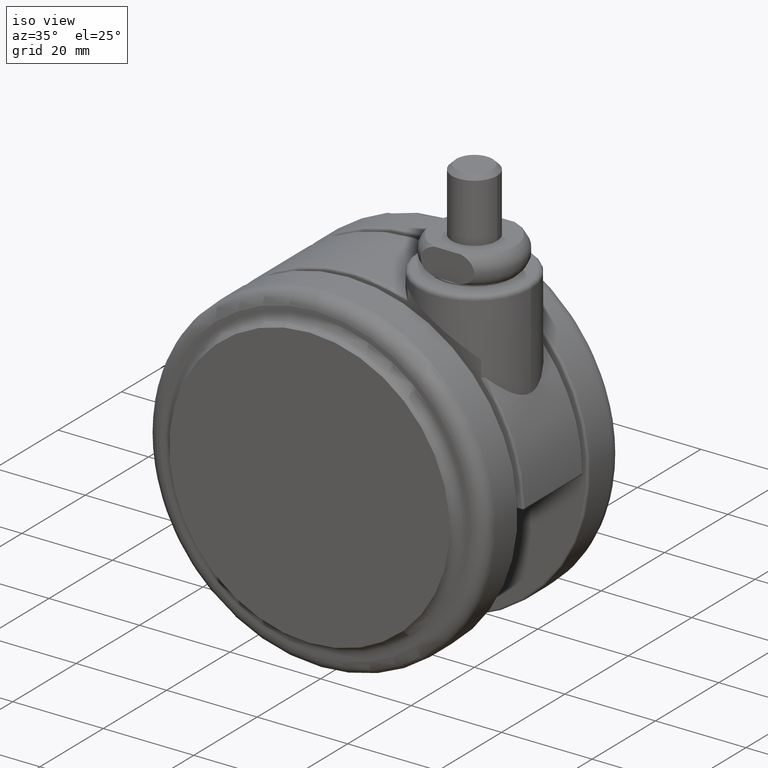
[diagram: clean part render]
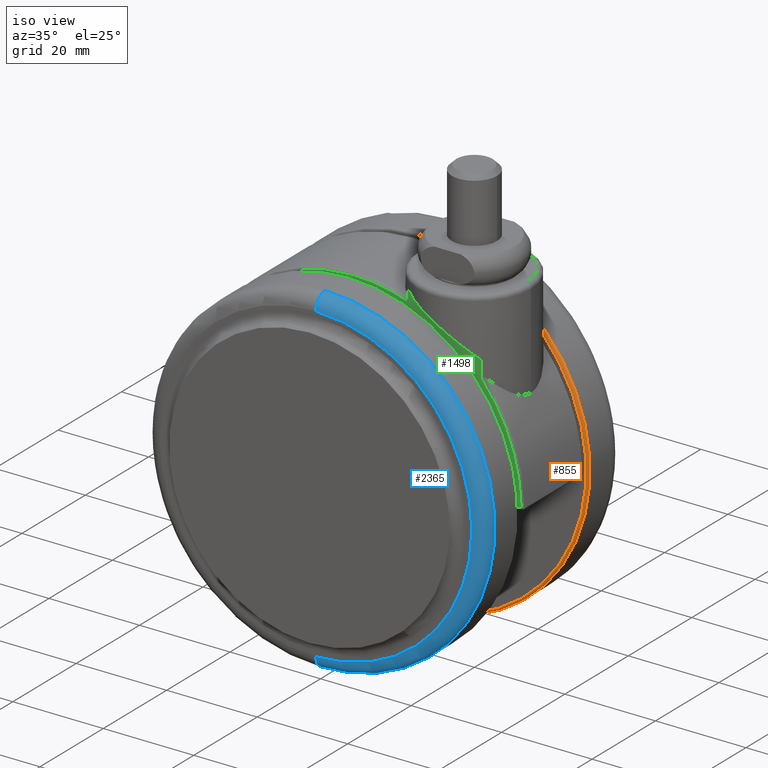
[diagram: same view with three faces highlighted in distinct colors, each labeled with its STEP entity id]
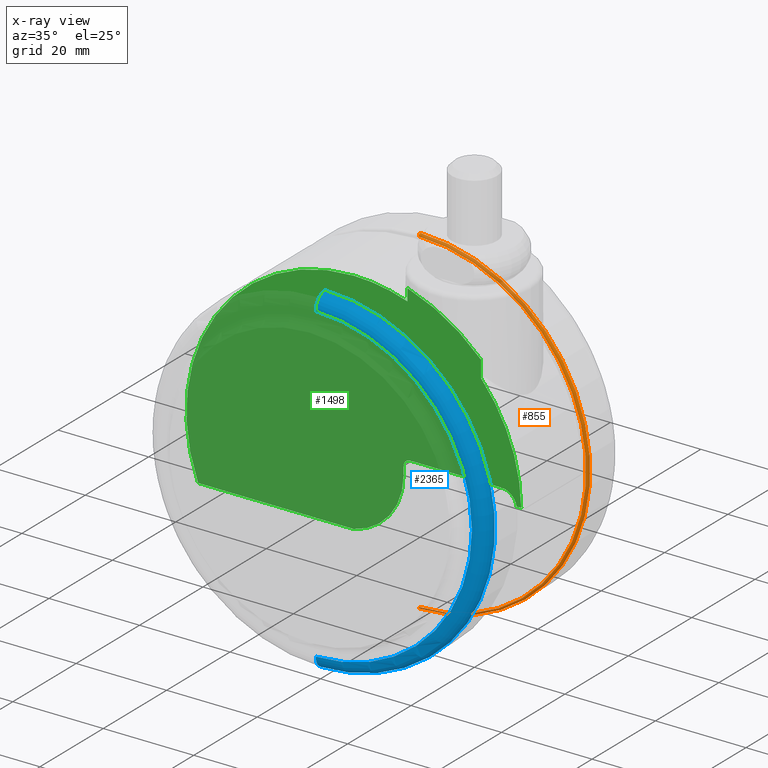
[diagram: x-ray of the same camera — body ghosted, the three highlighted faces saturated]
A machine part, iso view with three faces highlighted in distinct colors.
The next image is the same camera in x-ray (body ghosted, the three faces saturated) — at least one of them is partly hidden behind the body in this view.
Their STEP definitions:

[orange] entity #855 — the highlighted toroidal blend (fillet) surface has major radius 37 mm and minor (blend) radius 0.5 mm.
#72 = DIRECTION ( 'NONE',  ( -1.582413479254075000E-015, -1.000000000000000000, 0.0000000000000000000 ) ) ;
#117 = DIRECTION ( 'NONE',  ( -1.000000000000000000, 1.582413479254075000E-015, -1.224646799147353200E-016 ) ) ;
#199 = CARTESIAN_POINT ( 'NONE',  ( -20.00000000000000000, 11.50000000000000000, -77.50000000000000000 ) ) ;
#315 = EDGE_CURVE ( 'NONE', #3753, #3182, #1836, .T. ) ;
#432 = DIRECTION ( 'NONE',  ( 0.0000000000000000000, 0.0000000000000000000, -1.000000000000000000 ) ) ;
#477 = AXIS2_PLACEMENT_3D ( 'NONE', #2027, #1318, #3547 ) ;
#722 = DIRECTION ( 'NONE',  ( 1.000000000000000000, -1.582413479254075000E-015, 0.0000000000000000000 ) ) ;
#855 = ADVANCED_FACE ( 'NONE', ( #3530 ), #1922, .T. ) ;
#1009 = CARTESIAN_POINT ( 'NONE',  ( -20.00000000000000000, 11.50000000000000000, -40.50000000000000000 ) ) ;
#1289 = EDGE_LOOP ( 'NONE', ( #2469, #3637, #2833, #2029 ) ) ;
#1318 = DIRECTION ( 'NONE',  ( -1.582413479254075000E-015, -1.000000000000000000, 0.0000000000000000000 ) ) ;
#1472 = EDGE_CURVE ( 'NONE', #3182, #2870, #1664, .T. ) ;
#1651 = CARTESIAN_POINT ( 'NONE',  ( -20.00000000000000000, 11.50000000000000000, -78.00000000000000000 ) ) ;
#1664 = CIRCLE ( 'NONE', #477, 37.50000000000000000 ) ;
#1836 = CIRCLE ( 'NONE', #3588, 0.5000000000000004400 ) ;
#1905 = DIRECTION ( 'NONE',  ( 1.582413479254075000E-015, 1.000000000000000000, 0.0000000000000000000 ) ) ;
#1907 = CARTESIAN_POINT ( 'NONE',  ( -20.00000000000000000, 11.00000000000000000, -40.50000000000000000 ) ) ;
#1922 = TOROIDAL_SURFACE ( 'NONE', #3833, 37.00000000000000000, 0.5000000000000000000 ) ;
#1954 = CARTESIAN_POINT ( 'NONE',  ( -20.00000000000000400, 11.50000000000000000, -3.500000000000003100 ) ) ;
#1969 = AXIS2_PLACEMENT_3D ( 'NONE', #1907, #72, #2222 ) ;
#2027 = CARTESIAN_POINT ( 'NONE',  ( -20.00000000000000000, 11.50000000000000000, -40.50000000000000000 ) ) ;
#2029 = ORIENTED_EDGE ( 'NONE', *, *, #1472, .T. ) ;
#2071 = CARTESIAN_POINT ( 'NONE',  ( -19.99999999999998200, 11.50000000000000000, -3.000000000000002700 ) ) ;
#2076 = DIRECTION ( 'NONE',  ( 0.0000000000000000000, 1.000000000000000000, 0.0000000000000000000 ) ) ;
#2222 = DIRECTION ( 'NONE',  ( 0.0000000000000000000, 0.0000000000000000000, -1.000000000000000000 ) ) ;
#2259 = EDGE_CURVE ( 'NONE', #3292, #2870, #3507, .T. ) ;
#2262 = DIRECTION ( 'NONE',  ( 0.0000000000000000000, -1.000000000000000000, 0.0000000000000000000 ) ) ;
#2469 = ORIENTED_EDGE ( 'NONE', *, *, #2259, .F. ) ;
#2563 = CIRCLE ( 'NONE', #1969, 37.00000000000000000 ) ;
#2833 = ORIENTED_EDGE ( 'NONE', *, *, #315, .T. ) ;
#2870 = VERTEX_POINT ( 'NONE', #2071 ) ;
#3182 = VERTEX_POINT ( 'NONE', #1651 ) ;
#3250 = CARTESIAN_POINT ( 'NONE',  ( -20.00000000000000400, 11.00000000000000000, -3.500000000000003100 ) ) ;
#3292 = VERTEX_POINT ( 'NONE', #3250 ) ;
#3301 = CARTESIAN_POINT ( 'NONE',  ( -20.00000000000000000, 11.00000000000000000, -77.50000000000000000 ) ) ;
#3507 = CIRCLE ( 'NONE', #3718, 0.5000000000000004400 ) ;
#3530 = FACE_OUTER_BOUND ( 'NONE', #1289, .T. ) ;
#3547 = DIRECTION ( 'NONE',  ( 0.0000000000000000000, 0.0000000000000000000, -1.000000000000000000 ) ) ;
#3588 = AXIS2_PLACEMENT_3D ( 'NONE', #199, #722, #2076 ) ;
#3637 = ORIENTED_EDGE ( 'NONE', *, *, #3920, .F. ) ;
#3718 = AXIS2_PLACEMENT_3D ( 'NONE', #1954, #117, #2262 ) ;
#3753 = VERTEX_POINT ( 'NONE', #3301 ) ;
#3833 = AXIS2_PLACEMENT_3D ( 'NONE', #1009, #1905, #432 ) ;
#3920 = EDGE_CURVE ( 'NONE', #3753, #3292, #2563, .T. ) ;

[blue] entity #2365 — the highlighted toroidal blend (fillet) surface has major radius 34.5 mm and minor (blend) radius 3 mm.
#82 = TOROIDAL_SURFACE ( 'NONE', #1001, 34.50000000000000000, 3.000000000000000000 ) ;
#168 = CARTESIAN_POINT ( 'NONE',  ( -20.00000000000000000, -18.50000000000000000, -40.50000000000000000 ) ) ;
#196 = AXIS2_PLACEMENT_3D ( 'NONE', #168, #3531, #3280 ) ;
#216 = VERTEX_POINT ( 'NONE', #2328 ) ;
#254 = EDGE_LOOP ( 'NONE', ( #2728, #3252, #1049, #335 ) ) ;
#335 = ORIENTED_EDGE ( 'NONE', *, *, #3648, .F. ) ;
#452 = DIRECTION ( 'NONE',  ( 0.0000000000000000000, -1.000000000000000000, 0.0000000000000000000 ) ) ;
#489 = EDGE_CURVE ( 'NONE', #1870, #216, #3057, .T. ) ;
#1001 = AXIS2_PLACEMENT_3D ( 'NONE', #1683, #452, #1989 ) ;
#1049 = ORIENTED_EDGE ( 'NONE', *, *, #489, .F. ) ;
#1115 = DIRECTION ( 'NONE',  ( -1.000000000000000000, -0.0000000000000000000, -0.0000000000000000000 ) ) ;
#1482 = AXIS2_PLACEMENT_3D ( 'NONE', #2854, #3921, #3812 ) ;
#1636 = EDGE_CURVE ( 'NONE', #2355, #3041, #3616, .T. ) ;
#1683 = CARTESIAN_POINT ( 'NONE',  ( -20.00000000000000000, -18.50000000000000000, -40.50000000000000000 ) ) ;
#1706 = CIRCLE ( 'NONE', #2470, 3.000000000000002700 ) ;
#1870 = VERTEX_POINT ( 'NONE', #3676 ) ;
#1989 = DIRECTION ( 'NONE',  ( 0.0000000000000000000, 0.0000000000000000000, -1.000000000000000000 ) ) ;
#2165 = EDGE_CURVE ( 'NONE', #3041, #216, #2997, .T. ) ;
#2328 = CARTESIAN_POINT ( 'NONE',  ( -19.99999999999999600, -21.50000000000000000, -5.999999999999998200 ) ) ;
#2355 = VERTEX_POINT ( 'NONE', #2890 ) ;
#2365 = ADVANCED_FACE ( 'NONE', ( #3227 ), #82, .T. ) ;
#2393 = DIRECTION ( 'NONE',  ( 0.0000000000000000000, 0.0000000000000000000, -1.000000000000000000 ) ) ;
#2470 = AXIS2_PLACEMENT_3D ( 'NONE', #2936, #1115, #3245 ) ;
#2517 = AXIS2_PLACEMENT_3D ( 'NONE', #3923, #3942, #2393 ) ;
#2728 = ORIENTED_EDGE ( 'NONE', *, *, #1636, .T. ) ;
#2854 = CARTESIAN_POINT ( 'NONE',  ( -20.00000000000000000, -21.50000000000000000, -40.50000000000000000 ) ) ;
#2890 = CARTESIAN_POINT ( 'NONE',  ( -20.00000000000000000, -18.50000000000000000, -78.00000000000001400 ) ) ;
#2936 = CARTESIAN_POINT ( 'NONE',  ( -20.00000000000000000, -18.50000000000000000, -75.00000000000001400 ) ) ;
#2997 = CIRCLE ( 'NONE', #2517, 2.999999999999999100 ) ;
#3041 = VERTEX_POINT ( 'NONE', #3734 ) ;
#3057 = CIRCLE ( 'NONE', #1482, 34.50000000000000700 ) ;
#3227 = FACE_OUTER_BOUND ( 'NONE', #254, .T. ) ;
#3245 = DIRECTION ( 'NONE',  ( 0.0000000000000000000, 0.0000000000000000000, 1.000000000000000000 ) ) ;
#3252 = ORIENTED_EDGE ( 'NONE', *, *, #2165, .T. ) ;
#3280 = DIRECTION ( 'NONE',  ( 0.0000000000000000000, 0.0000000000000000000, -1.000000000000000000 ) ) ;
#3531 = DIRECTION ( 'NONE',  ( 0.0000000000000000000, -1.000000000000000000, 0.0000000000000000000 ) ) ;
#3616 = CIRCLE ( 'NONE', #196, 37.50000000000000000 ) ;
#3648 = EDGE_CURVE ( 'NONE', #2355, #1870, #1706, .T. ) ;
#3676 = CARTESIAN_POINT ( 'NONE',  ( -20.00000000000000000, -21.50000000000000000, -75.00000000000001400 ) ) ;
#3734 = CARTESIAN_POINT ( 'NONE',  ( -19.99999999999999600, -18.50000000000000000, -3.000000000000000400 ) ) ;
#3812 = DIRECTION ( 'NONE',  ( 0.0000000000000000000, 0.0000000000000000000, -1.000000000000000000 ) ) ;
#3921 = DIRECTION ( 'NONE',  ( 0.0000000000000000000, -1.000000000000000000, 0.0000000000000000000 ) ) ;
#3923 = CARTESIAN_POINT ( 'NONE',  ( -19.99999999999999600, -18.50000000000000000, -5.999999999999998200 ) ) ;
#3942 = DIRECTION ( 'NONE',  ( 1.000000000000000000, 0.0000000000000000000, -1.224646799147353200E-016 ) ) ;

[green] entity #1498 — the highlighted planar face has unit normal (0, 1, 0).
#1 = VERTEX_POINT ( 'NONE', #589 ) ;
#49 = LINE ( 'NONE', #2610, #2411 ) ;
#51 = CARTESIAN_POINT ( 'NONE',  ( -20.05147125534830400, -9.499999999999801000, -54.11339081420359800 ) ) ;
#96 = PLANE ( 'NONE',  #1916 ) ;
#136 = DIRECTION ( 'NONE',  ( 0.0000000000000000000, 0.0000000000000000000, 1.000000000000000000 ) ) ;
#143 = DIRECTION ( 'NONE',  ( 1.000000000000000000, 0.0000000000000000000, 0.0000000000000000000 ) ) ;
#349 = CARTESIAN_POINT ( 'NONE',  ( 16.99662146737135200, -9.499999999999801000, -40.00000000000000000 ) ) ;
#404 = AXIS2_PLACEMENT_3D ( 'NONE', #3494, #1679, #3796 ) ;
#456 = CARTESIAN_POINT ( 'NONE',  ( 8.124038404636159800, -9.499999999999801000, -1000.000000000000000 ) ) ;
#464 = EDGE_CURVE ( 'NONE', #1197, #969, #3152, .T. ) ;
#479 = CARTESIAN_POINT ( 'NONE',  ( 15.96278654843155000, -9.499999999999801000, -40.00000000000000000 ) ) ;
#498 = CARTESIAN_POINT ( 'NONE',  ( -7.500000000000450300, -9.499999999999801000, -38.61339081420354800 ) ) ;
#565 = VECTOR ( 'NONE', #143, 1000.000000000000000 ) ;
#589 = CARTESIAN_POINT ( 'NONE',  ( -8.124038404636159800, -9.499999999999801000, -5.457717879889360200 ) ) ;
#617 = CARTESIAN_POINT ( 'NONE',  ( 17.49999999999950300, -9.499999999999801000, -40.00000000000000000 ) ) ;
#625 = ORIENTED_EDGE ( 'NONE', *, *, #1796, .T. ) ;
#662 = CARTESIAN_POINT ( 'NONE',  ( -9.000000000000449400, -9.499999999999801000, -38.61339081420354800 ) ) ;
#698 = EDGE_CURVE ( 'NONE', #1, #1780, #773, .T. ) ;
#699 = DIRECTION ( 'NONE',  ( 0.0000000000000000000, 0.0000000000000000000, 1.000000000000000000 ) ) ;
#709 = ORIENTED_EDGE ( 'NONE', *, *, #464, .T. ) ;
#738 = CARTESIAN_POINT ( 'NONE',  ( -20.00000000000045100, -9.499999999999801000, -3.500000000000003100 ) ) ;
#753 = CARTESIAN_POINT ( 'NONE',  ( -8.124038404636159800, -9.499999999999801000, -1000.000000000000000 ) ) ;
#769 = VERTEX_POINT ( 'NONE', #738 ) ;
#773 = LINE ( 'NONE', #753, #1497 ) ;
#896 = VECTOR ( 'NONE', #3893, 1000.000000000000000 ) ;
#929 = AXIS2_PLACEMENT_3D ( 'NONE', #1643, #3762, #1962 ) ;
#969 = VERTEX_POINT ( 'NONE', #3427 ) ;
#1045 = CARTESIAN_POINT ( 'NONE',  ( -20.00000000000045100, -9.499999999999801000, -54.11339081420359800 ) ) ;
#1079 = EDGE_CURVE ( 'NONE', #2811, #1197, #49, .T. ) ;
#1157 = AXIS2_PLACEMENT_3D ( 'NONE', #2193, #2156, #2409 ) ;
#1197 = VERTEX_POINT ( 'NONE', #662 ) ;
#1242 = VERTEX_POINT ( 'NONE', #2474 ) ;
#1270 = AXIS2_PLACEMENT_3D ( 'NONE', #498, #2390, #2974 ) ;
#1278 = LINE ( 'NONE', #456, #2804 ) ;
#1285 = ORIENTED_EDGE ( 'NONE', *, *, #3577, .T. ) ;
#1306 = DIRECTION ( 'NONE',  ( 1.000000000000000000, 0.0000000000000000000, 0.0000000000000000000 ) ) ;
#1339 = ORIENTED_EDGE ( 'NONE', *, *, #2674, .T. ) ;
#1370 = CARTESIAN_POINT ( 'NONE',  ( -20.00000000000045100, -9.499999999999801000, -40.50000000000000000 ) ) ;
#1467 = CIRCLE ( 'NONE', #2216, 37.00000000000000000 ) ;
#1469 = CARTESIAN_POINT ( 'NONE',  ( -8.124038404636159800, -9.499999999999840100, -2.827575918379870300 ) ) ;
#1497 = VECTOR ( 'NONE', #699, 1000.000000000000000 ) ;
#1498 = ADVANCED_FACE ( 'NONE', ( #3183 ), #96, .F. ) ;
#1545 = EDGE_CURVE ( 'NONE', #2173, #2578, #2290, .T. ) ;
#1554 = CARTESIAN_POINT ( 'NONE',  ( 8.124038404636170400, -9.499999999999840100, -12.76395010434029900 ) ) ;
#1555 = DIRECTION ( 'NONE',  ( 0.0000000000000000000, 1.000000000000000000, 0.0000000000000000000 ) ) ;
#1596 = EDGE_CURVE ( 'NONE', #2572, #1780, #2205, .T. ) ;
#1643 = CARTESIAN_POINT ( 'NONE',  ( 12.61329079872222200, -9.499999999999801000, -40.50000000000000000 ) ) ;
#1663 = DIRECTION ( 'NONE',  ( 4.407135317346482700E-015, 0.0000000000000000000, 1.000000000000000000 ) ) ;
#1679 = DIRECTION ( 'NONE',  ( -0.0000000000000000000, -1.000000000000000000, -0.0000000000000000000 ) ) ;
#1701 = LINE ( 'NONE', #1778, #896 ) ;
#1703 = VERTEX_POINT ( 'NONE', #51 ) ;
#1719 = CIRCLE ( 'NONE', #1157, 13.91033914236718200 ) ;
#1778 = CARTESIAN_POINT ( 'NONE',  ( 12.61329079872220000, -9.499999999999801000, -37.11339081420354800 ) ) ;
#1780 = VERTEX_POINT ( 'NONE', #1469 ) ;
#1796 = EDGE_CURVE ( 'NONE', #1703, #2811, #1719, .T. ) ;
#1866 = ORIENTED_EDGE ( 'NONE', *, *, #698, .F. ) ;
#1916 = AXIS2_PLACEMENT_3D ( 'NONE', #2332, #1555, #3740 ) ;
#1962 = DIRECTION ( 'NONE',  ( 0.0000000000000000000, 0.0000000000000000000, 1.000000000000000000 ) ) ;
#1966 = DIRECTION ( 'NONE',  ( -0.0000000000000000000, -1.000000000000000000, -0.0000000000000000000 ) ) ;
#2012 = DIRECTION ( 'NONE',  ( 0.0000000000000000000, 0.0000000000000000000, 1.000000000000000000 ) ) ;
#2062 = ORIENTED_EDGE ( 'NONE', *, *, #1545, .T. ) ;
#2066 = DIRECTION ( 'NONE',  ( -6.236221103511559900E-015, 0.0000000000000000000, 1.000000000000000000 ) ) ;
#2156 = DIRECTION ( 'NONE',  ( -0.0000000000000000000, -1.000000000000000000, -0.0000000000000000000 ) ) ;
#2173 = VERTEX_POINT ( 'NONE', #479 ) ;
#2193 = CARTESIAN_POINT ( 'NONE',  ( -22.91033914236765100, -9.499999999999801000, -40.50000000000000000 ) ) ;
#2205 = CIRCLE ( 'NONE', #3732, 39.50000000000000000 ) ;
#2216 = AXIS2_PLACEMENT_3D ( 'NONE', #3773, #1966, #136 ) ;
#2245 = ORIENTED_EDGE ( 'NONE', *, *, #1079, .T. ) ;
#2290 = LINE ( 'NONE', #617, #3003 ) ;
#2321 = CARTESIAN_POINT ( 'NONE',  ( -20.00000000000045100, -9.499999999999840100, -40.50000000000000000 ) ) ;
#2332 = CARTESIAN_POINT ( 'NONE',  ( -57.50000000000000000, -9.499999999999801000, -40.50000000000000000 ) ) ;
#2340 = ORIENTED_EDGE ( 'NONE', *, *, #3323, .T. ) ;
#2374 = DIRECTION ( 'NONE',  ( -0.0000000000000000000, -1.000000000000000000, -0.0000000000000000000 ) ) ;
#2390 = DIRECTION ( 'NONE',  ( 0.0000000000000000000, 1.000000000000000000, 0.0000000000000000000 ) ) ;
#2392 = CARTESIAN_POINT ( 'NONE',  ( 8.124038404636159800, -9.499999999999801000, -16.45756951108054600 ) ) ;
#2409 = DIRECTION ( 'NONE',  ( 0.0000000000000000000, 0.0000000000000000000, 1.000000000000000000 ) ) ;
#2411 = VECTOR ( 'NONE', #2012, 1000.000000000000000 ) ;
#2474 = CARTESIAN_POINT ( 'NONE',  ( 12.61329079872222200, -9.499999999999801000, -37.11339081420354800 ) ) ;
#2485 = CIRCLE ( 'NONE', #929, 3.386609185796432400 ) ;
#2537 = VERTEX_POINT ( 'NONE', #2392 ) ;
#2572 = VERTEX_POINT ( 'NONE', #1554 ) ;
#2578 = VERTEX_POINT ( 'NONE', #349 ) ;
#2601 = DIRECTION ( 'NONE',  ( -0.0000000000000000000, -0.0000000000000000000, -1.000000000000000000 ) ) ;
#2610 = CARTESIAN_POINT ( 'NONE',  ( -9.000000000000449400, -9.499999999999801000, -38.61339081420354800 ) ) ;
#2645 = EDGE_CURVE ( 'NONE', #1242, #2173, #2485, .T. ) ;
#2674 = EDGE_CURVE ( 'NONE', #3326, #1703, #3175, .T. ) ;
#2698 = EDGE_CURVE ( 'NONE', #2572, #2537, #1278, .T. ) ;
#2765 = ORIENTED_EDGE ( 'NONE', *, *, #3552, .T. ) ;
#2804 = VECTOR ( 'NONE', #2601, 1000.000000000000000 ) ;
#2811 = VERTEX_POINT ( 'NONE', #3209 ) ;
#2856 = ORIENTED_EDGE ( 'NONE', *, *, #3165, .T. ) ;
#2899 = ORIENTED_EDGE ( 'NONE', *, *, #2698, .F. ) ;
#2974 = DIRECTION ( 'NONE',  ( 0.0000000000000000000, 0.0000000000000000000, 1.000000000000000000 ) ) ;
#3003 = VECTOR ( 'NONE', #1306, 1000.000000000000000 ) ;
#3069 = ORIENTED_EDGE ( 'NONE', *, *, #2645, .T. ) ;
#3115 = EDGE_LOOP ( 'NONE', ( #2062, #1285, #2899, #3701, #1866, #2765, #2856, #1339, #625, #2245, #709, #2340, #3069 ) ) ;
#3152 = CIRCLE ( 'NONE', #1270, 1.500000000000001300 ) ;
#3165 = EDGE_CURVE ( 'NONE', #769, #3326, #1467, .T. ) ;
#3175 = LINE ( 'NONE', #1045, #565 ) ;
#3183 = FACE_OUTER_BOUND ( 'NONE', #3115, .T. ) ;
#3209 = CARTESIAN_POINT ( 'NONE',  ( -9.000000000000449400, -9.499999999999801000, -40.50000000000000000 ) ) ;
#3323 = EDGE_CURVE ( 'NONE', #969, #1242, #1701, .T. ) ;
#3326 = VERTEX_POINT ( 'NONE', #3583 ) ;
#3427 = CARTESIAN_POINT ( 'NONE',  ( -7.500000000000450300, -9.499999999999801000, -37.11339081420354800 ) ) ;
#3484 = DIRECTION ( 'NONE',  ( -0.0000000000000000000, -1.000000000000000000, -0.0000000000000000000 ) ) ;
#3494 = CARTESIAN_POINT ( 'NONE',  ( -20.00000000000045100, -9.499999999999801000, -40.50000000000000000 ) ) ;
#3542 = AXIS2_PLACEMENT_3D ( 'NONE', #1370, #3484, #1663 ) ;
#3548 = CIRCLE ( 'NONE', #404, 37.00000000000000000 ) ;
#3552 = EDGE_CURVE ( 'NONE', #1, #769, #3735, .T. ) ;
#3577 = EDGE_CURVE ( 'NONE', #2578, #2537, #3548, .T. ) ;
#3583 = CARTESIAN_POINT ( 'NONE',  ( -54.40458676600820100, -9.499999999999801000, -54.11339081420359800 ) ) ;
#3701 = ORIENTED_EDGE ( 'NONE', *, *, #1596, .T. ) ;
#3732 = AXIS2_PLACEMENT_3D ( 'NONE', #2321, #2374, #2066 ) ;
#3735 = CIRCLE ( 'NONE', #3542, 37.00000000000000000 ) ;
#3740 = DIRECTION ( 'NONE',  ( 0.0000000000000000000, 0.0000000000000000000, 1.000000000000000000 ) ) ;
#3762 = DIRECTION ( 'NONE',  ( 0.0000000000000000000, 1.000000000000000000, 0.0000000000000000000 ) ) ;
#3773 = CARTESIAN_POINT ( 'NONE',  ( -20.00000000000045100, -9.499999999999801000, -40.50000000000000000 ) ) ;
#3796 = DIRECTION ( 'NONE',  ( -2.625527423100032400E-015, 0.0000000000000000000, 1.000000000000000000 ) ) ;
#3893 = DIRECTION ( 'NONE',  ( 1.000000000000000000, 0.0000000000000000000, 0.0000000000000000000 ) ) ;